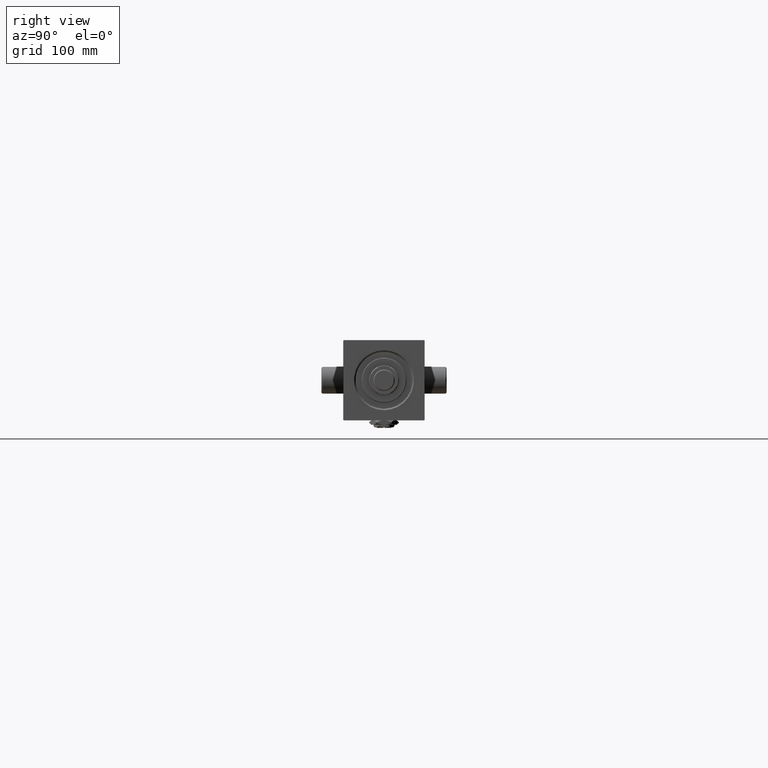
[diagram: clean part render]
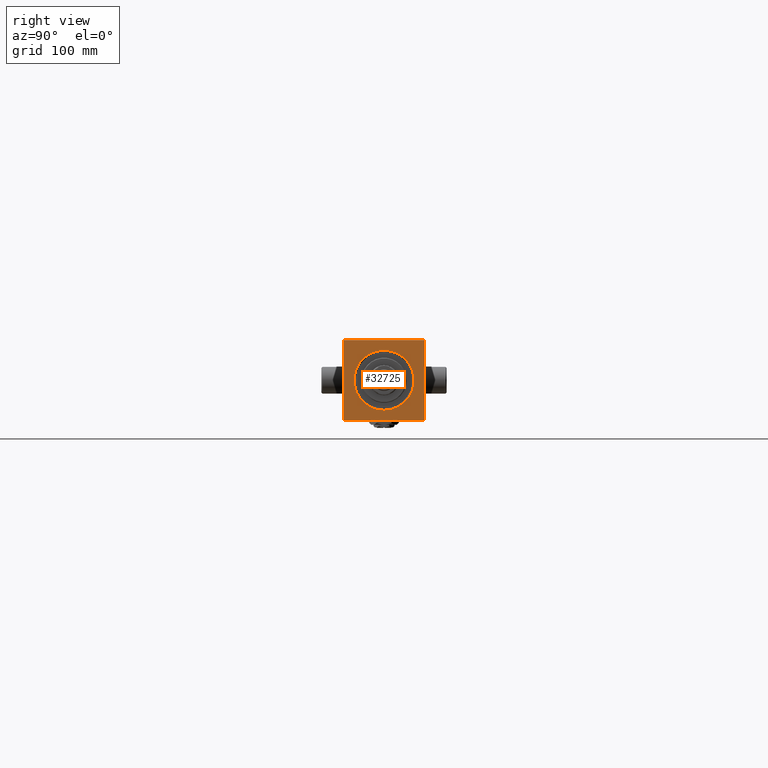
[diagram: same view with one face highlighted and labeled with its STEP entity id]
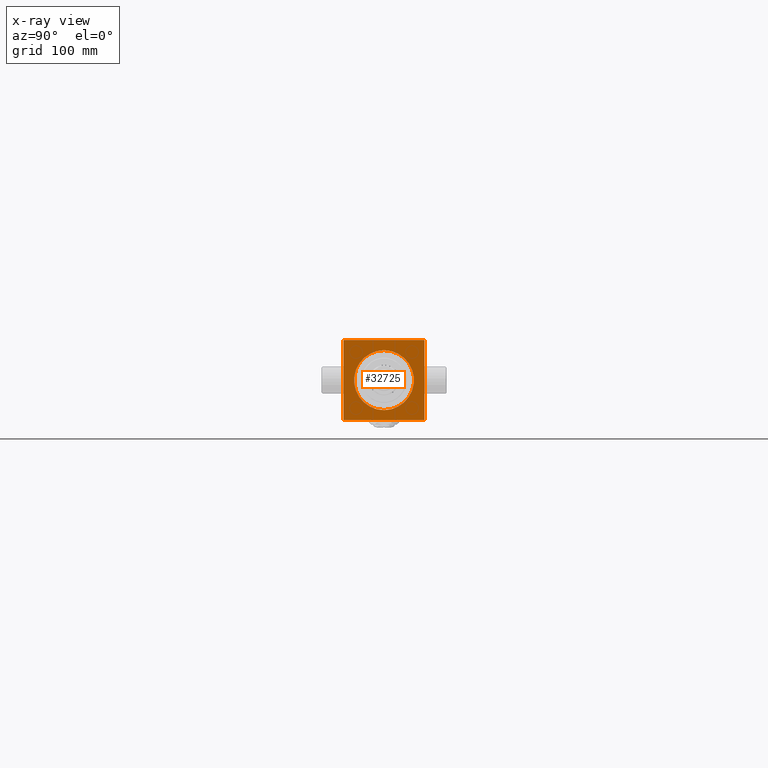
[diagram: x-ray of the same camera — body ghosted, the highlighted face saturated]
A machine part, right view. The second image highlights one B-rep face of the part: STEP entity #32725.
The next image is the same camera in x-ray: the body ghosted, the highlighted face saturated — about 0% of this face is hidden behind the body in this view.
In plain terms, the highlighted planar face has unit normal (-1, 0, 0).
Its self-contained STEP definition (entity closure, byte-faithful):
#65 = FACE_OUTER_BOUND ( 'NONE', #30682, .T. ) ;
#222 = LINE ( 'NONE', #38093, #48888 ) ;
#969 = VERTEX_POINT ( 'NONE', #28834 ) ;
#1080 = VECTOR ( 'NONE', #24633, 1000.000000000000000 ) ;
#1181 = CARTESIAN_POINT ( 'NONE',  ( 599.0000000000000000, 37.50000000000000000, -37.50000000000000711 ) ) ;
#1191 = ORIENTED_EDGE ( 'NONE', *, *, #39947, .T. ) ;
#2367 = AXIS2_PLACEMENT_3D ( 'NONE', #34465, #12676, #46367 ) ;
#2560 = DIRECTION ( 'NONE',  ( 0.000000000000000000, 0.000000000000000000, -1.000000000000000000 ) ) ;
#3059 = ORIENTED_EDGE ( 'NONE', *, *, #14463, .T. ) ;
#3531 = DIRECTION ( 'NONE',  ( 0.000000000000000000, 0.000000000000000000, 1.000000000000000000 ) ) ;
#4106 = VERTEX_POINT ( 'NONE', #41307 ) ;
#4361 = CARTESIAN_POINT ( 'NONE',  ( 599.0000000000000000, 3.429011037612605842E-15, 28.00000000000013500 ) ) ;
#5728 = CARTESIAN_POINT ( 'NONE',  ( 599.0000000000000000, -38.00000000000000000, 36.99999999999994316 ) ) ;
#6202 = CARTESIAN_POINT ( 'NONE',  ( 599.0000000000000000, 37.50000000000005684, 37.50000000000000711 ) ) ;
#6334 = EDGE_CURVE ( 'NONE', #18512, #969, #29852, .T. ) ;
#7063 = EDGE_CURVE ( 'NONE', #22823, #18512, #43385, .T. ) ;
#7850 = VECTOR ( 'NONE', #32601, 1000.000000000000114 ) ;
#8368 = ORIENTED_EDGE ( 'NONE', *, *, #7063, .T. ) ;
#8995 = VERTEX_POINT ( 'NONE', #1181 ) ;
#9981 = VECTOR ( 'NONE', #35937, 1000.000000000000000 ) ;
#9990 = CARTESIAN_POINT ( 'NONE',  ( 599.0000000000000000, 38.00000000000000000, -37.50000000000000711 ) ) ;
#11208 = CARTESIAN_POINT ( 'NONE',  ( 599.0000000000000000, 0.000000000000000000, -28.00000000000013500 ) ) ;
#11380 = EDGE_CURVE ( 'NONE', #8995, #46638, #222, .T. ) ;
#11456 = DIRECTION ( 'NONE',  ( -1.000000000000000000, -0.000000000000000000, 0.000000000000000000 ) ) ;
#11834 = ORIENTED_EDGE ( 'NONE', *, *, #11380, .T. ) ;
#11850 = DIRECTION ( 'NONE',  ( -0.000000000000000000, 0.7071067811865081598, 0.7071067811865867636 ) ) ;
#12619 = DIRECTION ( 'NONE',  ( 0.000000000000000000, 0.000000000000000000, 1.000000000000000000 ) ) ;
#12676 = DIRECTION ( 'NONE',  ( -1.000000000000000000, -0.000000000000000000, 0.000000000000000000 ) ) ;
#14463 = EDGE_CURVE ( 'NONE', #18770, #32937, #48205, .T. ) ;
#16321 = DIRECTION ( 'NONE',  ( -1.000000000000000000, -0.000000000000000000, 0.000000000000000000 ) ) ;
#16682 = AXIS2_PLACEMENT_3D ( 'NONE', #25613, #11456, #3531 ) ;
#17494 = VECTOR ( 'NONE', #21276, 1000.000000000000000 ) ;
#17678 = LINE ( 'NONE', #47899, #1080 ) ;
#18512 = VERTEX_POINT ( 'NONE', #47914 ) ;
#18770 = VERTEX_POINT ( 'NONE', #32926 ) ;
#19366 = FACE_BOUND ( 'NONE', #45929, .T. ) ;
#21276 = DIRECTION ( 'NONE',  ( 0.000000000000000000, -1.000000000000000000, -9.130123557772669567E-17 ) ) ;
#21561 = VERTEX_POINT ( 'NONE', #4361 ) ;
#21594 = CARTESIAN_POINT ( 'NONE',  ( 599.0000000000000000, 38.00000000000000000, -36.99999999999995026 ) ) ;
#22193 = EDGE_CURVE ( 'NONE', #8995, #4106, #43918, .T. ) ;
#22823 = VERTEX_POINT ( 'NONE', #45575 ) ;
#22993 = CIRCLE ( 'NONE', #16682, 28.00000000000013500 ) ;
#24633 = DIRECTION ( 'NONE',  ( 0.000000000000000000, 0.7071067811865916486, -0.7071067811865033859 ) ) ;
#25613 = CARTESIAN_POINT ( 'NONE',  ( 599.0000000000000000, 0.000000000000000000, 0.000000000000000000 ) ) ;
#26087 = LINE ( 'NONE', #41185, #17494 ) ;
#28318 = DIRECTION ( 'NONE',  ( 0.000000000000000000, -1.000000000000000000, 9.130123557772667102E-17 ) ) ;
#28834 = CARTESIAN_POINT ( 'NONE',  ( 599.0000000000000000, -38.00000000000000711, -36.99999999999995737 ) ) ;
#28960 = ORIENTED_EDGE ( 'NONE', *, *, #39654, .F. ) ;
#28971 = VECTOR ( 'NONE', #40754, 1000.000000000000000 ) ;
#29058 = CARTESIAN_POINT ( 'NONE',  ( 599.0000000000000000, 38.00000000000000000, 37.50000000000000711 ) ) ;
#29852 = LINE ( 'NONE', #48695, #28971 ) ;
#30682 = EDGE_LOOP ( 'NONE', ( #35527, #38839, #33386, #11834, #28960, #3059, #1191, #8368 ) ) ;
#31429 = CARTESIAN_POINT ( 'NONE',  ( 599.0000000000000000, 0.000000000000000000, 0.000000000000000000 ) ) ;
#32601 = DIRECTION ( 'NONE',  ( 0.000000000000000000, -0.7071067811865867636, 0.7071067811865082708 ) ) ;
#32655 = VERTEX_POINT ( 'NONE', #11208 ) ;
#32725 = ADVANCED_FACE ( 'NONE', ( #19366, #65 ), #45387, .F. ) ;
#32926 = CARTESIAN_POINT ( 'NONE',  ( 599.0000000000000000, 38.00000000000000000, 37.00000000000011369 ) ) ;
#32937 = VERTEX_POINT ( 'NONE', #6202 ) ;
#33386 = ORIENTED_EDGE ( 'NONE', *, *, #22193, .F. ) ;
#34465 = CARTESIAN_POINT ( 'NONE',  ( 599.0000000000000000, 0.000000000000000000, 0.000000000000000000 ) ) ;
#35070 = EDGE_CURVE ( 'NONE', #21561, #32655, #22993, .T. ) ;
#35527 = ORIENTED_EDGE ( 'NONE', *, *, #6334, .T. ) ;
#35937 = DIRECTION ( 'NONE',  ( -0.000000000000000000, -0.7071067811865081598, -0.7071067811865867636 ) ) ;
#38093 = CARTESIAN_POINT ( 'NONE',  ( 599.0000000000000000, 38.00000000000000000, -36.99999999999995026 ) ) ;
#38839 = ORIENTED_EDGE ( 'NONE', *, *, #46336, .T. ) ;
#39654 = EDGE_CURVE ( 'NONE', #18770, #46638, #40931, .T. ) ;
#39938 = EDGE_CURVE ( 'NONE', #32655, #21561, #41219, .T. ) ;
#39947 = EDGE_CURVE ( 'NONE', #32937, #22823, #26087, .T. ) ;
#40515 = CARTESIAN_POINT ( 'NONE',  ( 599.0000000000000000, 37.50000000000005684, 37.50000000000000711 ) ) ;
#40754 = DIRECTION ( 'NONE',  ( 0.000000000000000000, -9.251858538542971581E-17, -1.000000000000000000 ) ) ;
#40931 = LINE ( 'NONE', #29058, #42780 ) ;
#41185 = CARTESIAN_POINT ( 'NONE',  ( 599.0000000000000000, 38.00000000000000000, 37.50000000000000711 ) ) ;
#41219 = CIRCLE ( 'NONE', #43598, 28.00000000000013500 ) ;
#41307 = CARTESIAN_POINT ( 'NONE',  ( 599.0000000000000000, -37.49999999999990052, -37.50000000000000000 ) ) ;
#41993 = VECTOR ( 'NONE', #28318, 1000.000000000000000 ) ;
#42750 = ORIENTED_EDGE ( 'NONE', *, *, #35070, .T. ) ;
#42780 = VECTOR ( 'NONE', #2560, 1000.000000000000000 ) ;
#43385 = LINE ( 'NONE', #5728, #9981 ) ;
#43598 = AXIS2_PLACEMENT_3D ( 'NONE', #31429, #16321, #12619 ) ;
#43918 = LINE ( 'NONE', #9990, #41993 ) ;
#45387 = PLANE ( 'NONE',  #2367 ) ;
#45575 = CARTESIAN_POINT ( 'NONE',  ( 599.0000000000000000, -37.50000000000000000, 37.50000000000000000 ) ) ;
#45749 = ORIENTED_EDGE ( 'NONE', *, *, #39938, .T. ) ;
#45929 = EDGE_LOOP ( 'NONE', ( #45749, #42750 ) ) ;
#46336 = EDGE_CURVE ( 'NONE', #969, #4106, #17678, .T. ) ;
#46367 = DIRECTION ( 'NONE',  ( 0.000000000000000000, 0.000000000000000000, 1.000000000000000000 ) ) ;
#46638 = VERTEX_POINT ( 'NONE', #21594 ) ;
#47899 = CARTESIAN_POINT ( 'NONE',  ( 599.0000000000000000, -37.49999999999990052, -37.50000000000000000 ) ) ;
#47914 = CARTESIAN_POINT ( 'NONE',  ( 599.0000000000000000, -38.00000000000000000, 36.99999999999994316 ) ) ;
#48205 = LINE ( 'NONE', #40515, #7850 ) ;
#48695 = CARTESIAN_POINT ( 'NONE',  ( 599.0000000000000000, -38.00000000000000000, 37.50000000000000000 ) ) ;
#48888 = VECTOR ( 'NONE', #11850, 1000.000000000000000 ) ;